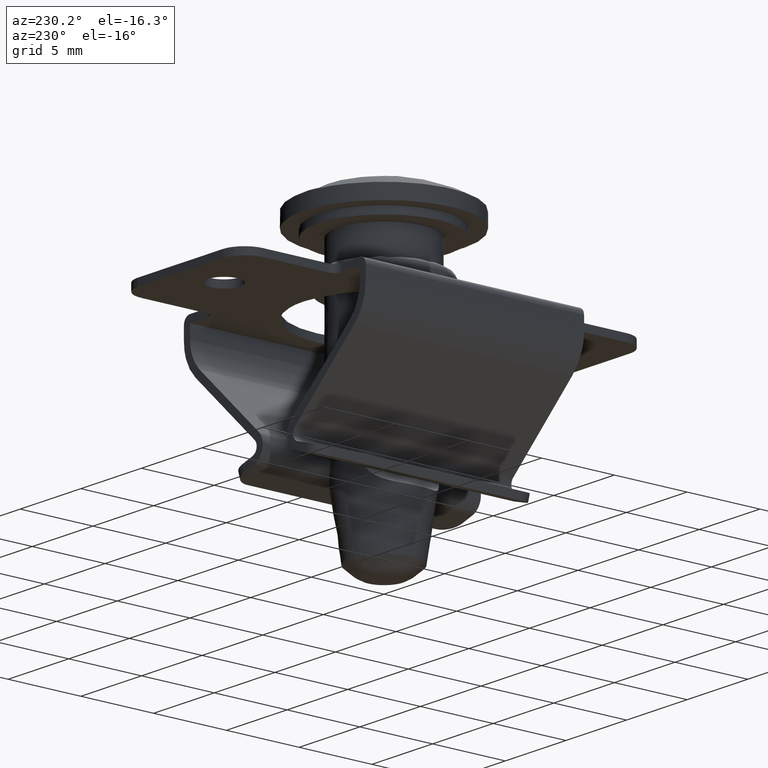
[diagram: clean part render]
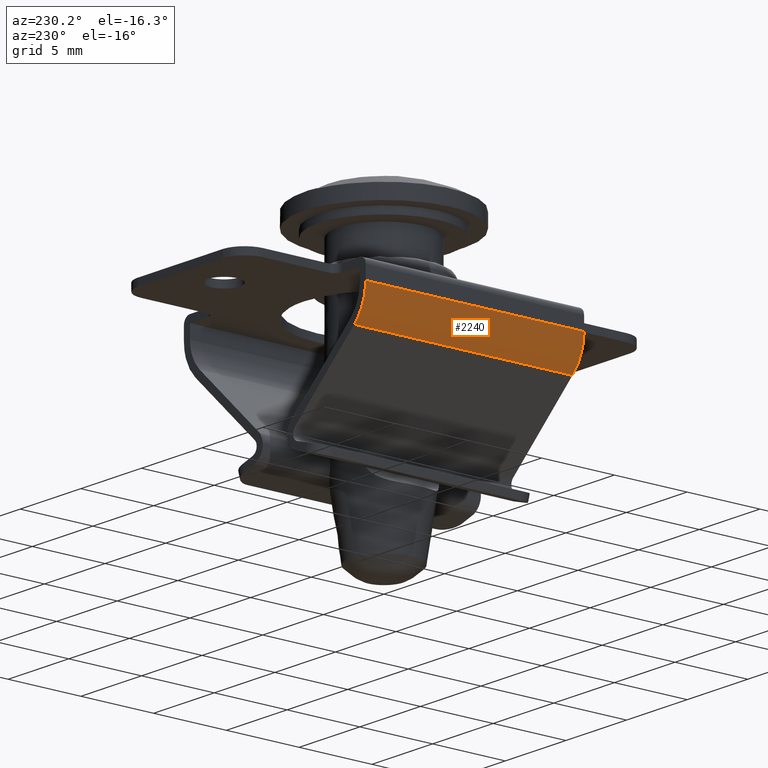
[diagram: same view with one face highlighted and labeled with its STEP entity id]
A machine part, auxiliary view. The second image highlights one B-rep face of the part: STEP entity #2240.
In plain terms, the highlighted face is a freeform B-spline surface patch.
Its self-contained STEP definition (entity closure, byte-faithful):
#1572=CARTESIAN_POINT('',(-7.500000000000000,3.608190274704310,-6.539796254720590));
#1573=VERTEX_POINT('',#1572);
#1579=CARTESIAN_POINT('',(-7.500000000000000,1.408364999999966,-7.500000000000000));
#1580=VERTEX_POINT('',#1579);
#1581=CARTESIAN_POINT('',(-7.500000000000000,1.408364999999966,-7.500000000000000));
#1582=CARTESIAN_POINT('',(-7.500000000000005,1.639874418632566,-7.500050473486846));
#1583=CARTESIAN_POINT('',(-7.499999999999984,2.025688321958458,-7.455100858155008));
#1584=CARTESIAN_POINT('',(-7.500000000000026,2.615627435801727,-7.267020592622816));
#1585=CARTESIAN_POINT('',(-7.499999999999959,3.137849320924390,-6.980651901979512));
#1586=CARTESIAN_POINT('',(-7.500000000000024,3.468287746935422,-6.690704027988727));
#1587=CARTESIAN_POINT('',(-7.500000000000000,3.608190274704310,-6.539796254720590));
#1588=B_SPLINE_CURVE_WITH_KNOTS('',3,(#1581,#1582,#1583,#1584,#1585,#1586,#1587),.UNSPECIFIED.,.F.,.U.,(4,1,1,1,4),(2.481809E-009,0.694518431502006,1.157530034967727,1.852046975433744,2.469395963419495),.UNSPECIFIED.);
#1589=EDGE_CURVE('',#1580,#1573,#1588,.T.);
#1976=CARTESIAN_POINT('',(7.500000000000000,1.408364999999966,-7.500000000000000));
#1977=VERTEX_POINT('',#1976);
#1983=CARTESIAN_POINT('',(7.500000000000000,3.608190274704310,-6.539796254720590));
#1984=VERTEX_POINT('',#1983);
#1985=CARTESIAN_POINT('',(7.500000000000000,3.608190274704310,-6.539796254720590));
#1986=CARTESIAN_POINT('',(7.499999999999996,3.468291035378750,-6.690710899080757));
#1987=CARTESIAN_POINT('',(7.500000000000008,3.176708207899981,-6.946507644501989));
#1988=CARTESIAN_POINT('',(7.500000000000017,2.641068370233229,-7.258463963143004));
#1989=CARTESIAN_POINT('',(7.499999999999963,2.051431686005104,-7.454860548410235));
#1990=CARTESIAN_POINT('',(7.500000000000031,1.614146459884384,-7.500020398446528));
#1991=CARTESIAN_POINT('',(7.500000000000000,1.408364999999966,-7.500000000000000));
#1992=B_SPLINE_CURVE_WITH_KNOTS('',3,(#1985,#1986,#1987,#1988,#1989,#1990,#1991),.UNSPECIFIED.,.F.,.U.,(4,1,1,1,4),(2.481599E-009,0.617349149026147,1.157530034967639,1.852046975433712,2.469395963419497),.UNSPECIFIED.);
#1993=EDGE_CURVE('',#1984,#1977,#1992,.T.);
#2206=CARTESIAN_POINT('',(-7.500000000000000,1.408364999999966,-7.500000000000000));
#2207=CARTESIAN_POINT('',(7.500000000000000,1.408364999999966,-7.500000000000000));
#2208=QUASI_UNIFORM_CURVE('',1,(#2206,#2207),.UNSPECIFIED.,.F.,.U.);
#2209=EDGE_CURVE('',#1580,#1977,#2208,.T.);
#2216=CARTESIAN_POINT('',(-7.875000000000000,3.660832090642943,-6.481512554986850));
#2217=CARTESIAN_POINT('',(7.884375000000000,3.660832090642943,-6.481512554986850));
#2218=CARTESIAN_POINT('',(-7.875000000000000,2.716768052640397,-7.554669104870197));
#2219=CARTESIAN_POINT('',(7.884375000000000,2.716768052640397,-7.554669104870197));
#2220=CARTESIAN_POINT('',(-7.875000000000000,1.288599307186477,-7.497608409853578));
#2221=CARTESIAN_POINT('',(7.884375000000000,1.288599307186477,-7.497608409853578));
#2229=(BOUNDED_SURFACE()B_SPLINE_SURFACE(1,2,((#2216,#2218,#2220),(#2217,#2219,#2221)),.UNSPECIFIED.,.F.,.F.,.U.)B_SPLINE_SURFACE_WITH_KNOTS((2,2),(3,3),(0.0,15.759375000000000),(0.0,2.712547349491812),.UNSPECIFIED.)GEOMETRIC_REPRESENTATION_ITEM()RATIONAL_B_SPLINE_SURFACE(((1.0,0.900905826045273,0.995864569981065),(1.0,0.900905826045273,0.995864569981065)))REPRESENTATION_ITEM('')SURFACE());
#2230=ORIENTED_EDGE('',*,*,#2209,.F.);
#2231=ORIENTED_EDGE('',*,*,#1589,.T.);
#2232=CARTESIAN_POINT('',(-7.500000000000000,3.608190274704310,-6.539796254720590));
#2233=CARTESIAN_POINT('',(7.500000000000000,3.608190274704310,-6.539796254720590));
#2234=QUASI_UNIFORM_CURVE('',1,(#2232,#2233),.UNSPECIFIED.,.F.,.U.);
#2235=EDGE_CURVE('',#1573,#1984,#2234,.T.);
#2236=ORIENTED_EDGE('',*,*,#2235,.T.);
#2237=ORIENTED_EDGE('',*,*,#1993,.T.);
#2238=EDGE_LOOP('',(#2230,#2231,#2236,#2237));
#2239=FACE_OUTER_BOUND('',#2238,.T.);
#2240=ADVANCED_FACE('',(#2239),#2229,.T.);